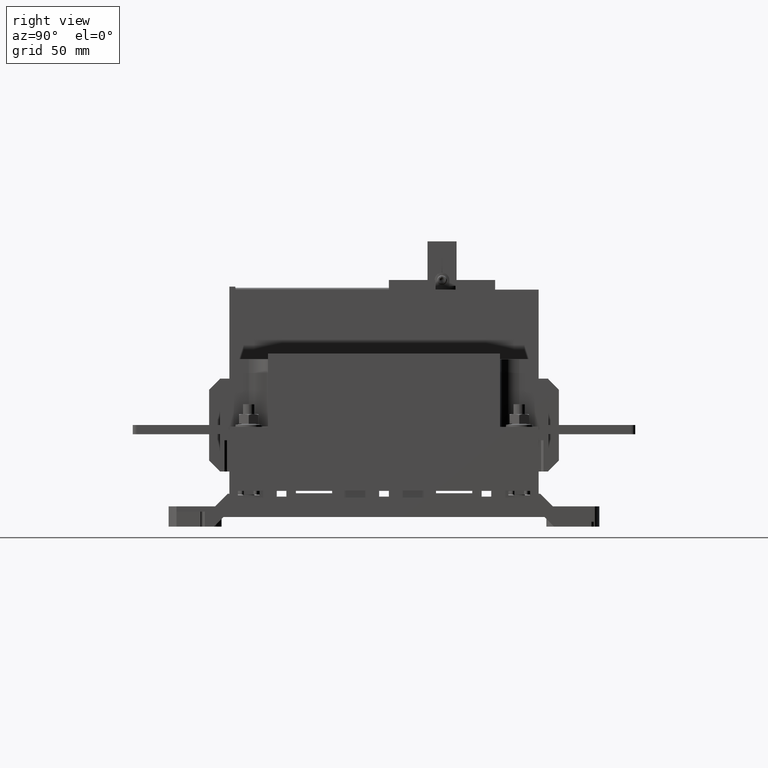
[diagram: clean part render]
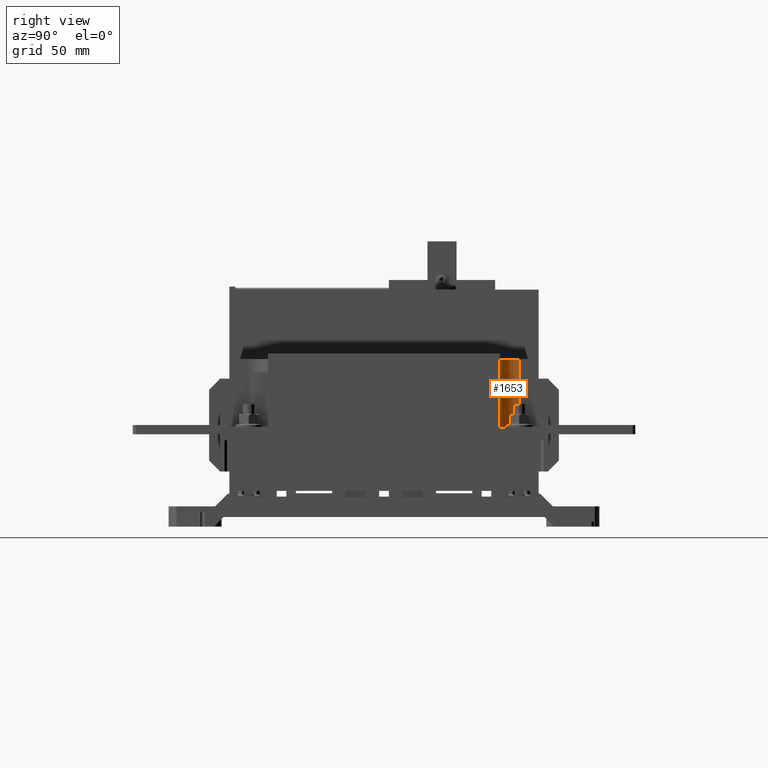
[diagram: same view with one face highlighted and labeled with its STEP entity id]
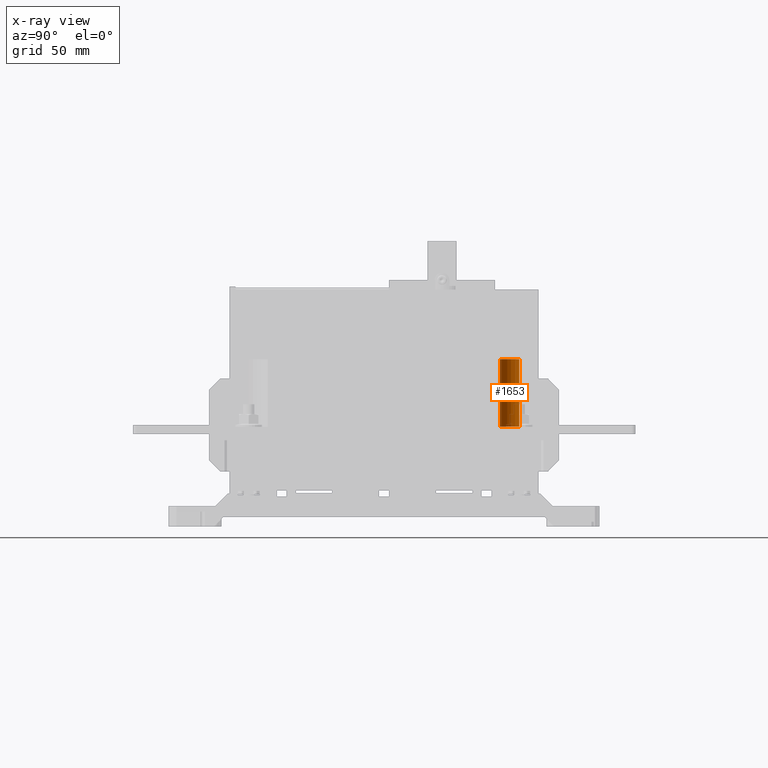
[diagram: x-ray of the same camera — body ghosted, the highlighted face saturated]
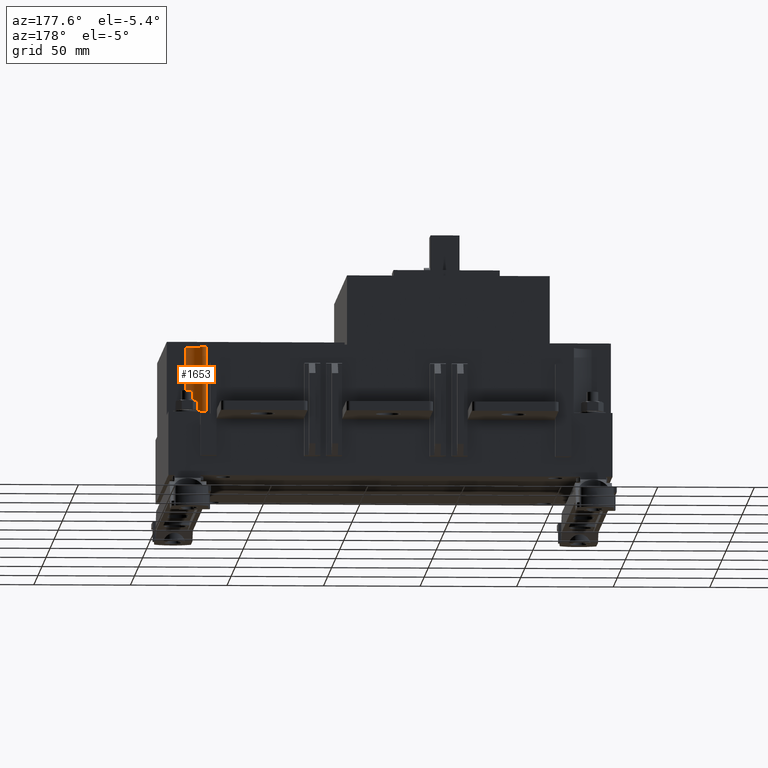
[diagram: same view with one face highlighted and labeled with its STEP entity id]
A machine part, right view. The second image highlights one B-rep face of the part: STEP entity #1653.
The next image is the same camera in x-ray: the body ghosted, the highlighted face saturated — about 0% of this face is hidden behind the body in this view.
A second angle (auxiliary view) of the same face is appended — the face is thin or edge-on in the first view.
In plain terms, the highlighted cylindrical surface (edge-blend (fillet) strip) has radius 10 mm, axis along (0, 0, -1).
Its self-contained STEP definition (entity closure, byte-faithful):
#475=CYLINDRICAL_SURFACE('',#16002,10.);
#1653=ADVANCED_FACE('',(#2858),#475,.F.);
#2858=FACE_OUTER_BOUND('',#3861,.T.);
#3861=EDGE_LOOP('',(#7833,#7834,#7835,#7836));
#4417=CIRCLE('',#15785,10.);
#4447=CIRCLE('',#16000,10.);
#7833=ORIENTED_EDGE('',*,*,#11675,.T.);
#7834=ORIENTED_EDGE('',*,*,#11711,.F.);
#7835=ORIENTED_EDGE('',*,*,#11713,.F.);
#7836=ORIENTED_EDGE('',*,*,#11269,.F.);
#9502=VERTEX_POINT('',#23457);
#9503=VERTEX_POINT('',#23459);
#9761=VERTEX_POINT('',#24291);
#9782=VERTEX_POINT('',#24365);
#11269=EDGE_CURVE('',#9502,#9503,#4417,.T.);
#11675=EDGE_CURVE('',#9502,#9761,#13200,.T.);
#11711=EDGE_CURVE('',#9782,#9761,#4447,.T.);
#11713=EDGE_CURVE('',#9503,#9782,#13234,.T.);
#13200=LINE('',#24292,#14628);
#13234=LINE('',#24368,#14662);
#14628=VECTOR('',#19582,1.);
#14662=VECTOR('',#19658,1.);
#15785=AXIS2_PLACEMENT_3D('',#23458,#18811,#18812);
#16000=AXIS2_PLACEMENT_3D('',#24364,#19653,#19654);
#16002=AXIS2_PLACEMENT_3D('',#24369,#19659,#19660);
#18811=DIRECTION('',(0.,0.,-1.));
#18812=DIRECTION('',(1.,0.,0.));
#19582=DIRECTION('',(0.,0.,-1.));
#19653=DIRECTION('',(0.,0.,1.));
#19654=DIRECTION('',(1.,0.,0.));
#19658=DIRECTION('',(0.,0.,-1.));
#19659=DIRECTION('',(0.,0.,-1.));
#19660=DIRECTION('',(-1.,0.,0.));
#23457=CARTESIAN_POINT('',(135.,30.,-40.4));
#23458=CARTESIAN_POINT('',(135.,40.000000000003,-40.4));
#23459=CARTESIAN_POINT('',(125.,40.000000000003,-40.4));
#24291=CARTESIAN_POINT('',(135.,30.,-75.4000000000012));
#24292=CARTESIAN_POINT('',(135.,30.,-40.4000000000012));
#24364=CARTESIAN_POINT('',(135.,40.000000000003,-75.4000000000012));
#24365=CARTESIAN_POINT('',(125.,40.000000000003,-75.4000000000012));
#24368=CARTESIAN_POINT('',(125.,40.000000000003,-40.4000000000012));
#24369=CARTESIAN_POINT('',(135.,40.000000000003,-40.4000000000012));